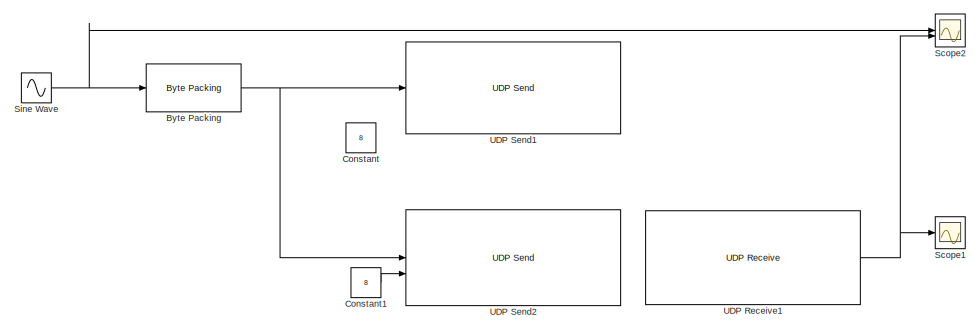
[diagram: root canvas - part 1/2, middle right region]
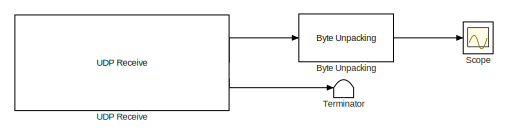
[diagram: root canvas - part 2/2, bottom left region]
MODEL slx_7d846c2b9615
KIND model
CONFIG AbsTol = auto
CONFIG EnableMultiTasking = off
CONFIG FixedStep = Ts
CONFIG InitFcn = Ts = 1e-5;
CONFIG MaxStep = auto
CONFIG MinStep = auto
CONFIG RelTol = 1e-3
CONFIG SampleTimeConstraint = Unconstrained
CONFIG SolverName = FixedStepAuto
CONFIG StartTime = 0.0
CONFIG StopTime = 100
BLOCK [Reference] Byte Packing  REF=slrealtimeutilitieslib/Byte Packing
  SourceBlock = slrealtimeutilitieslib/Byte Packing
  SourceType = slrealtimebytepacking
BLOCK [Reference] Byte Unpacking  REF=slrealtimeutilitieslib/Byte Unpacking
  Commented = on
  SourceBlock = slrealtimeutilitieslib/Byte Unpacking
  SourceType = slreraltimebytepacking
BLOCK [Constant] Constant
  Commented = on
  Value = 8
BLOCK [Constant] Constant1
  Value = 8
BLOCK [Scope] Scope
  Commented = on
  Floating = off
  NumInputPorts = 1
  ScopeSpecificationString = Simulink.scopes.TimeScopeBlockCfg('CurrentConfiguration', extmgr.ConfigurationSet(extmgr.Configuration('Core','General UI',true),extmgr.Configuration('Core','Source UI',true),extmgr.Configuration('Sources','WiredSimulink',true),extmgr.Configuration('Visuals','Time Domain',true,'SerializedDisplays',{struct('MinYLimReal','-1.25','MaxYLimReal','1.25','YLabelReal','','MinYLimMag','0.00000','MaxYLimMag...<+1393ch>
BLOCK [Scope] Scope1
  Floating = off
  NumInputPorts = 1
  ScopeSpecificationString = Simulink.scopes.TimeScopeBlockCfg('CurrentConfiguration', extmgr.ConfigurationSet(extmgr.Configuration('Core','General UI',true),extmgr.Configuration('Core','Source UI',true),extmgr.Configuration('Sources','WiredSimulink',true,'DataLoggingVariableName','ScopeData1'),extmgr.Configuration('Visuals','Time Domain',true,'SerializedDisplays',{struct('MinYLimReal','-1.25','MaxYLimReal','1.25','YLabelReal...<+1430ch>
BLOCK [Scope] Scope2
  Floating = off
  NumInputPorts = 2
  ScopeSpecificationString = Simulink.scopes.TimeScopeBlockCfg('CurrentConfiguration', extmgr.ConfigurationSet(extmgr.Configuration('Core','General UI',true),extmgr.Configuration('Core','Source UI',true),extmgr.Configuration('Sources','WiredSimulink',true,'DataLoggingVariableName','ScopeData2'),extmgr.Configuration('Visuals','Time Domain',true,'SerializedDisplays',{struct('MinYLimReal','-1.25','MaxYLimReal','1.25','YLabelReal...<+2057ch>
BLOCK [Sin] Sine Wave
  Frequency = pi*10
  SampleTime = Ts
BLOCK [Terminator] Terminator
  Commented = on
BLOCK [Reference] UDP Receive  REF=slrealtimeiplib/UDP Receive
  Commented = on
  SourceBlock = slrealtimeiplib/UDP Receive
  SourceType = slrealtimeudpreceive
BLOCK [Reference] UDP Receive1  REF=instrumentlib/UDP Receive
  SourceBlock = instrumentlib/UDP Receive
  SourceType = instrument.system.UDPReceive
BLOCK [Reference] UDP Send1  REF=instrumentlib/UDP Send
  Commented = on
  SourceBlock = instrumentlib/UDP Send
  SourceType = instrument.system.UDPSend
BLOCK [Reference] UDP Send2  REF=slrealtimeiplib/UDP Send
  SourceBlock = slrealtimeiplib/UDP Send
  SourceType = slrealtimeudpsend
NET Byte Packing:1 -> UDP Send1:1, UDP Send2:1
LINE Byte Unpacking:1 -> Scope:1
LINE Constant1:1 -> UDP Send2:2
NET Sine Wave:1 -> Byte Packing:1, Scope2:1
NET UDP Receive1:1 -> Scope1:1, Scope2:2
LINE UDP Receive:1 -> Byte Unpacking:1
LINE UDP Receive:2 -> Terminator:1
note: NET lines group one-source signal fan-out (src -> all destinations, sorted); 1:1 wires keep LINE
